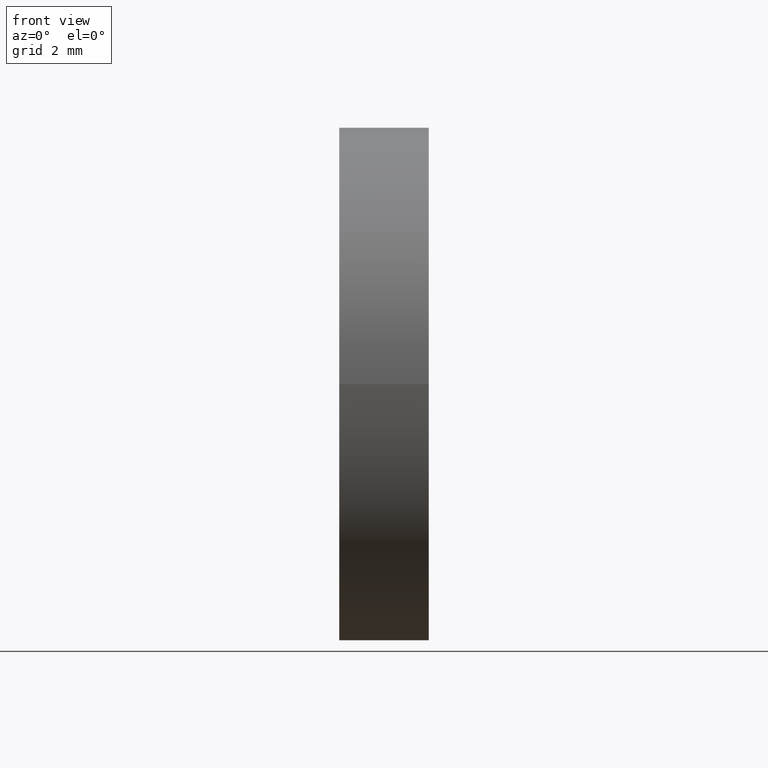
[diagram: clean part render]
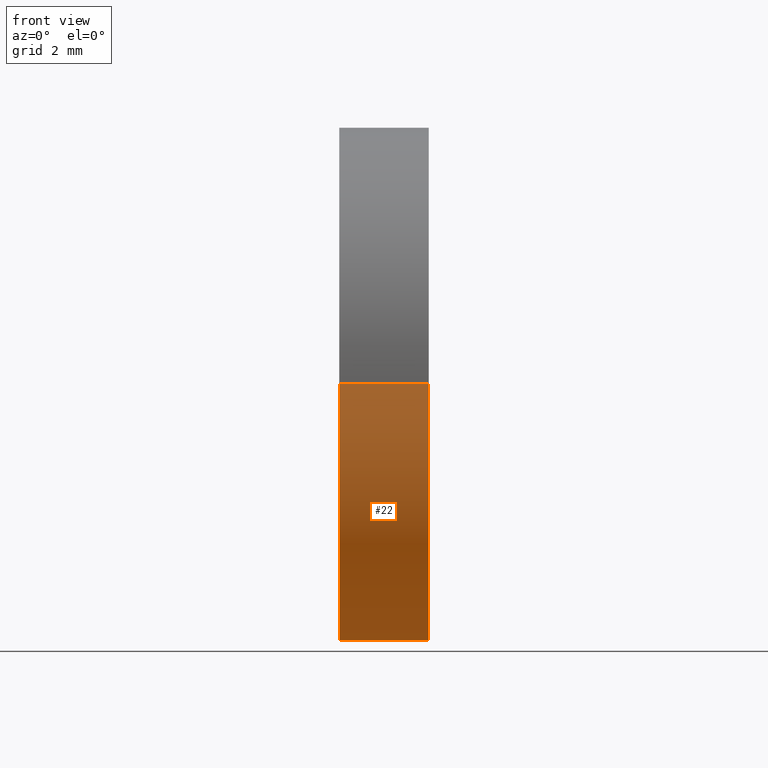
[diagram: same view with one face highlighted and labeled with its STEP entity id]
A machine part, front view. The second image highlights one B-rep face of the part: STEP entity #22.
In plain terms, the highlighted cylindrical surface (partial cylindrical patch) has radius 5 mm, axis along (-1, 0, -0).
Its self-contained STEP definition (entity closure, byte-faithful):
#4 = VERTEX_POINT ( 'NONE', #122 ) ;
#5 = EDGE_LOOP ( 'NONE', ( #42, #80, #34, #127 ) ) ;
#13 = CARTESIAN_POINT ( 'NONE',  ( 21.50597511808246100, 13.03112609140304200, 0.0000000000000000000 ) ) ;
#15 = FACE_OUTER_BOUND ( 'NONE', #5, .T. ) ;
#19 = EDGE_CURVE ( 'NONE', #133, #4, #156, .T. ) ;
#22 = ADVANCED_FACE ( 'NONE', ( #15 ), #103, .T. ) ;
#26 = CARTESIAN_POINT ( 'NONE',  ( 24.16686247112158600, 8.031126091403075800, 0.0000000000000000000 ) ) ;
#30 = DIRECTION ( 'NONE',  ( -1.000000000000000000, 3.159171411554934600E-016, -0.0000000000000000000 ) ) ;
#34 = ORIENTED_EDGE ( 'NONE', *, *, #105, .T. ) ;
#37 = CARTESIAN_POINT ( 'NONE',  ( 21.50597511808246100, 8.031126091403040200, 0.0000000000000000000 ) ) ;
#42 = ORIENTED_EDGE ( 'NONE', *, *, #73, .F. ) ;
#44 = LINE ( 'NONE', #112, #142 ) ;
#46 = DIRECTION ( 'NONE',  ( -1.000000000000000000, 3.159171411554934600E-016, -0.0000000000000000000 ) ) ;
#53 = DIRECTION ( 'NONE',  ( -1.000000000000000000, 3.159171411554934600E-016, -0.0000000000000000000 ) ) ;
#73 = EDGE_CURVE ( 'NONE', #88, #133, #44, .T. ) ;
#80 = ORIENTED_EDGE ( 'NONE', *, *, #87, .T. ) ;
#87 = EDGE_CURVE ( 'NONE', #88, #153, #125, .T. ) ;
#88 = VERTEX_POINT ( 'NONE', #139 ) ;
#90 = DIRECTION ( 'NONE',  ( 0.0000000000000000000, -1.000000000000000000, 0.0000000000000000000 ) ) ;
#92 = AXIS2_PLACEMENT_3D ( 'NONE', #13, #134, #149 ) ;
#93 = VECTOR ( 'NONE', #140, 1000.000000000000000 ) ;
#103 = CYLINDRICAL_SURFACE ( 'NONE', #92, 5.000000000000000900 ) ;
#105 = EDGE_CURVE ( 'NONE', #153, #4, #117, .T. ) ;
#109 = AXIS2_PLACEMENT_3D ( 'NONE', #165, #46, #124 ) ;
#111 = CARTESIAN_POINT ( 'NONE',  ( 22.42423205362066000, 13.03112609140304200, 0.0000000000000000000 ) ) ;
#112 = CARTESIAN_POINT ( 'NONE',  ( 21.50597511808246100, 18.03112609140304200, 6.123233995736767300E-016 ) ) ;
#117 = LINE ( 'NONE', #37, #93 ) ;
#122 = CARTESIAN_POINT ( 'NONE',  ( 22.42423205362066000, 8.031126091403040200, 0.0000000000000000000 ) ) ;
#124 = DIRECTION ( 'NONE',  ( 0.0000000000000000000, -1.000000000000000000, 0.0000000000000000000 ) ) ;
#125 = CIRCLE ( 'NONE', #109, 5.000000000000000900 ) ;
#127 = ORIENTED_EDGE ( 'NONE', *, *, #19, .F. ) ;
#133 = VERTEX_POINT ( 'NONE', #137 ) ;
#134 = DIRECTION ( 'NONE',  ( -1.000000000000000000, 3.159171411554934600E-016, -0.0000000000000000000 ) ) ;
#137 = CARTESIAN_POINT ( 'NONE',  ( 22.42423205362066000, 18.03112609140304200, 6.123233995736767300E-016 ) ) ;
#139 = CARTESIAN_POINT ( 'NONE',  ( 24.16686247112158600, 18.03112609140301700, 6.123233995736725900E-016 ) ) ;
#140 = DIRECTION ( 'NONE',  ( -1.000000000000000000, 3.159171411554934600E-016, -0.0000000000000000000 ) ) ;
#142 = VECTOR ( 'NONE', #30, 1000.000000000000000 ) ;
#145 = AXIS2_PLACEMENT_3D ( 'NONE', #111, #53, #90 ) ;
#149 = DIRECTION ( 'NONE',  ( 0.0000000000000000000, -1.000000000000000000, 0.0000000000000000000 ) ) ;
#153 = VERTEX_POINT ( 'NONE', #26 ) ;
#156 = CIRCLE ( 'NONE', #145, 5.000000000000000900 ) ;
#165 = CARTESIAN_POINT ( 'NONE',  ( 24.16686247112159000, 13.03112609140304200, 0.0000000000000000000 ) ) ;